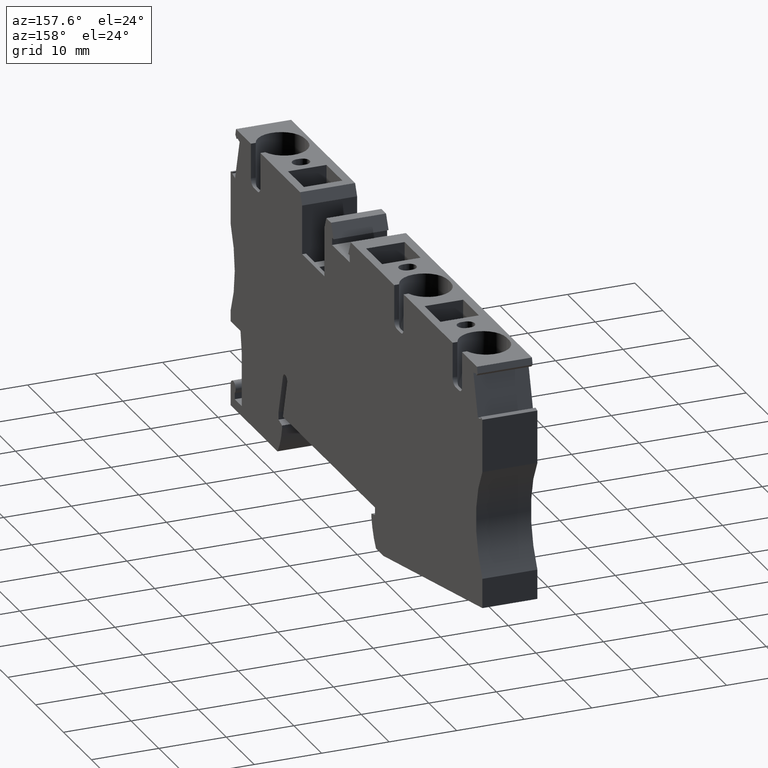
[diagram: clean part render]
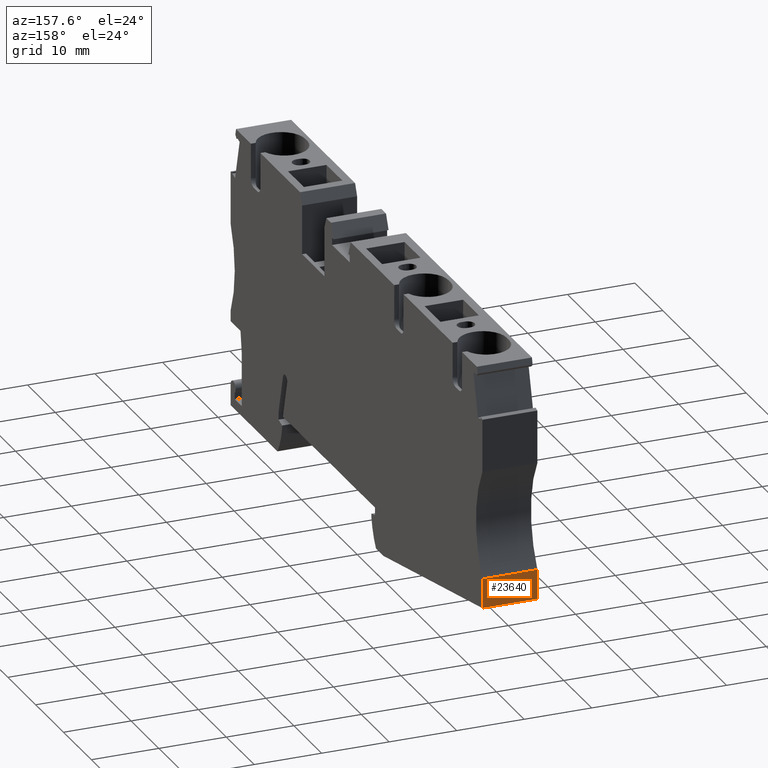
[diagram: same view with one face highlighted and labeled with its STEP entity id]
A machine part, auxiliary view. The second image highlights one B-rep face of the part: STEP entity #23640.
In plain terms, the highlighted planar face has unit normal (0, -1, 0).
Its self-contained STEP definition (entity closure, byte-faithful):
#6090=CARTESIAN_POINT('',(57.7321672216756,-33.2000000000001,53.67));
#6100=VERTEX_POINT('',#6090);
#6130=CARTESIAN_POINT('',(57.7321672216756,-43.855159722427,53.67));
#6140=DIRECTION('',(0.,1.,0.));
#6150=VECTOR('',#6140,1.);
#6160=LINE('',#6130,#6150);
#6170=CARTESIAN_POINT('',(57.7321672216756,-37.5829787234045,53.67));
#6180=VERTEX_POINT('',#6170);
#6190=EDGE_CURVE('',#6180,#6100,#6160,.T.);
#6640=CARTESIAN_POINT('',(57.7321672216756,-37.5829787234045,45.52));
#6650=VERTEX_POINT('',#6640);
#6680=CARTESIAN_POINT('',(57.7321672216756,-43.855159722427,45.52));
#6690=DIRECTION('',(0.,1.,0.));
#6700=VECTOR('',#6690,1.);
#6710=LINE('',#6680,#6700);
#6720=CARTESIAN_POINT('',(57.7321672216756,-33.2000000000001,45.52));
#6730=VERTEX_POINT('',#6720);
#6740=EDGE_CURVE('',#6650,#6730,#6710,.T.);
#21560=CARTESIAN_POINT('',(57.7321672216756,-37.5829787234045,53.67));
#21570=DIRECTION('',(0.,0.,1.));
#21580=VECTOR('',#21570,1.);
#21590=LINE('',#21560,#21580);
#21600=EDGE_CURVE('',#6650,#6180,#21590,.T.);
#23130=CARTESIAN_POINT('',(57.7321672216756,-33.2000000000001,53.67));
#23140=DIRECTION('',(0.,0.,1.));
#23150=VECTOR('',#23140,1.);
#23160=LINE('',#23130,#23150);
#23170=EDGE_CURVE('',#6730,#6100,#23160,.T.);
#23530=CARTESIAN_POINT('',(57.7321672216756,-33.7583695782669,53.67));
#23540=DIRECTION('',(-1.,0.,0.));
#23550=DIRECTION('',(0.,1.,0.));
#23560=AXIS2_PLACEMENT_3D('',#23530,#23540,#23550);
#23570=PLANE('',#23560);
#23580=ORIENTED_EDGE('',*,*,#6190,.F.);
#23590=ORIENTED_EDGE('',*,*,#23170,.T.);
#23600=ORIENTED_EDGE('',*,*,#6740,.T.);
#23610=ORIENTED_EDGE('',*,*,#21600,.F.);
#23620=EDGE_LOOP('',(#23610,#23600,#23590,#23580));
#23630=FACE_OUTER_BOUND('',#23620,.T.);
#23640=ADVANCED_FACE('',(#23630),#23570,.F.);